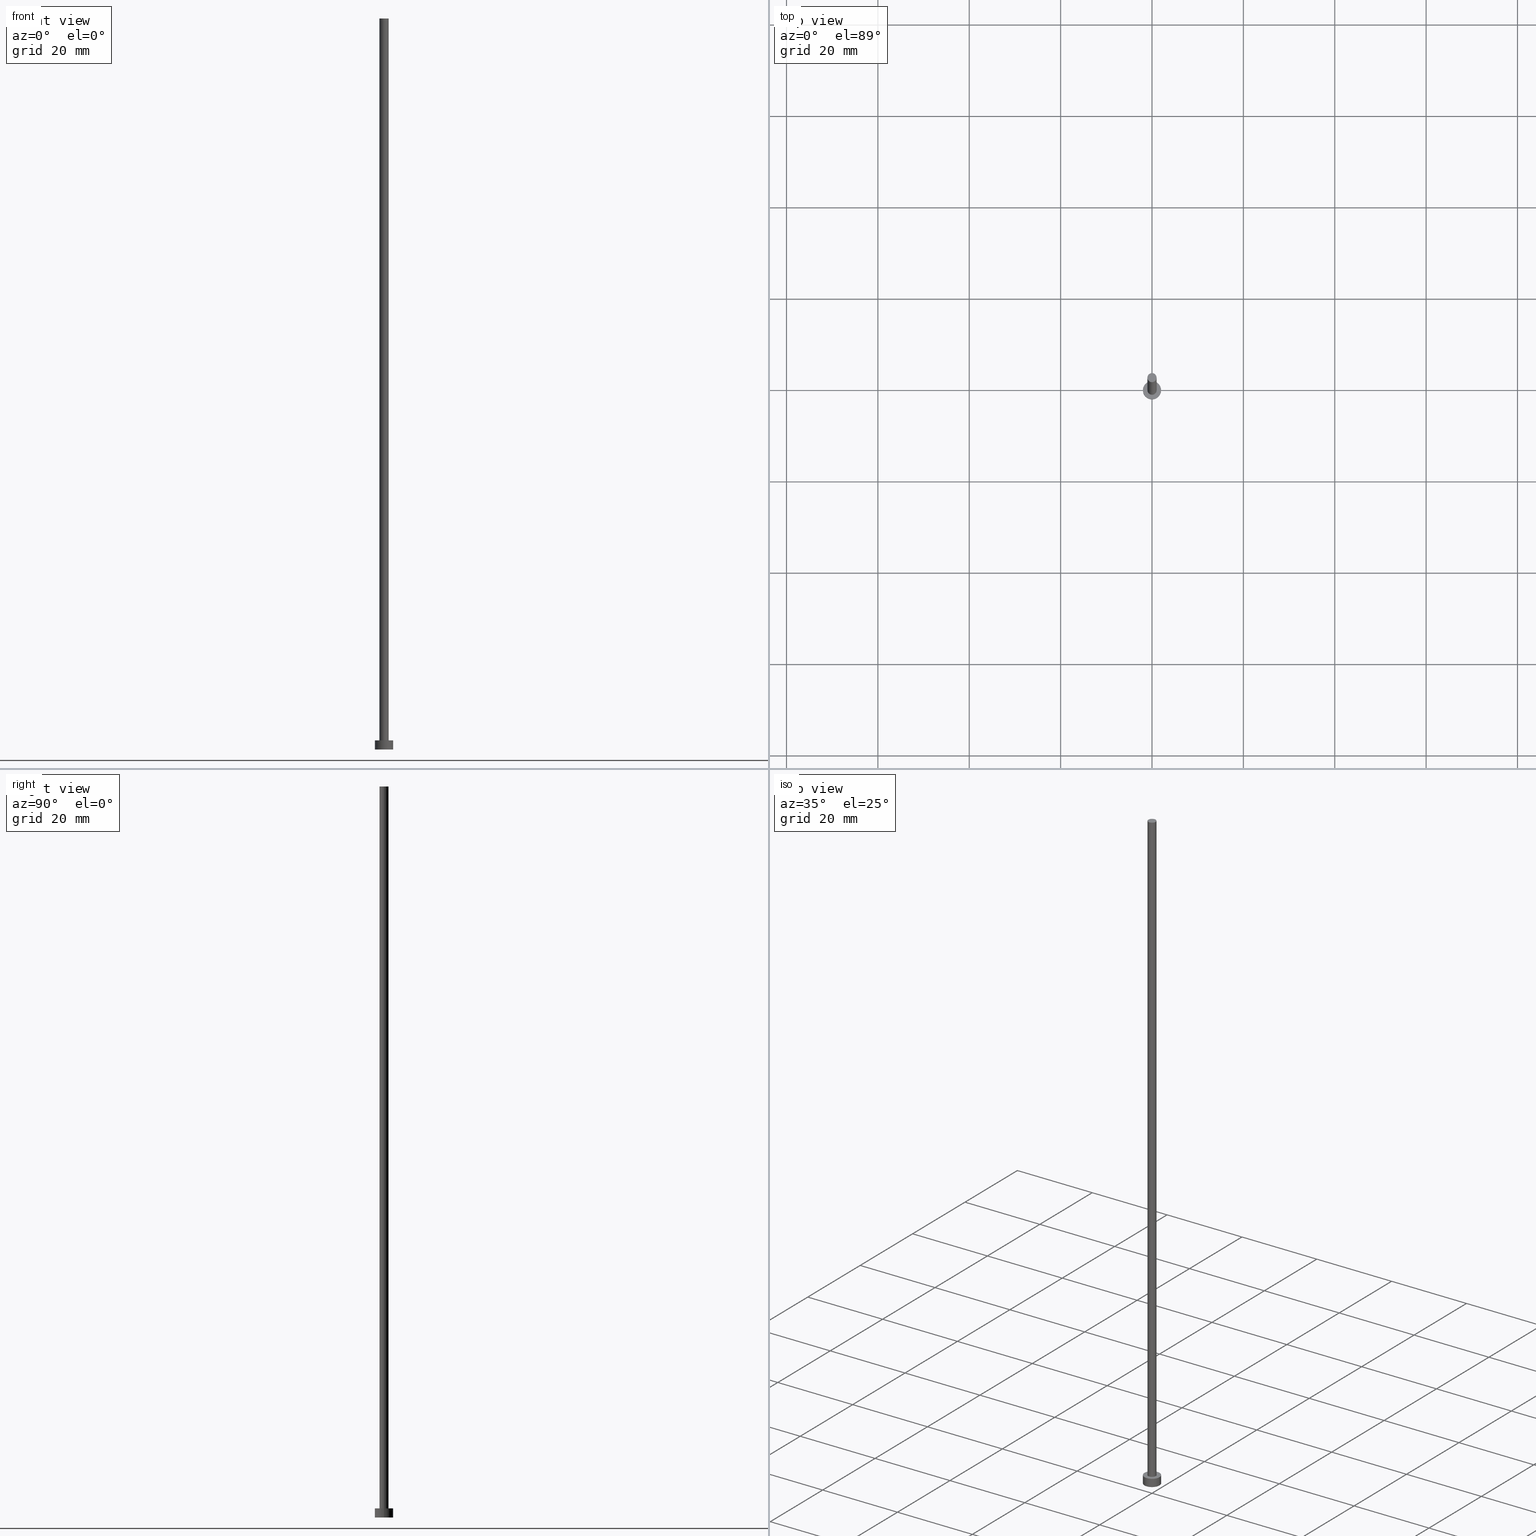
[diagram: canonical four-view strip — front | top / right | iso, engineering-drawing reading convention]
A machine part, canonical four-view strip (front | top / right | iso — engineering-drawing reading convention). The complete STEP part file that produces these views, byte-faithful:
ISO-10303-21;
HEADER;
FILE_DESCRIPTION (( 'STEP AP203' ),
    '1' );
FILE_NAME ('bf18.STEP',
    '2023-02-13T16:55:19',
    ( '' ),
    ( '' ),
    'SwSTEP 2.0',
    'SolidWorks 2019',
    '' );
FILE_SCHEMA (( 'CONFIG_CONTROL_DESIGN' ));
ENDSEC;

DATA;
#1 = CIRCLE ( 'NONE', #245, 1.000000000000000000 ) ;
#2 = DATE_AND_TIME ( #208, #3 ) ;
#3 = LOCAL_TIME ( 17, 55, 19.00000000000000000, #188 ) ;
#4 = CC_DESIGN_PERSON_AND_ORGANIZATION_ASSIGNMENT ( #29, #90, ( #133 ) ) ;
#5 = DATE_TIME_ROLE ( 'classification_date' ) ;
#6 = DATE_TIME_ROLE ( 'creation_date' ) ;
#7 = DATE_AND_TIME ( #189, #63 ) ;
#8 =( GEOMETRIC_REPRESENTATION_CONTEXT ( 3 ) GLOBAL_UNCERTAINTY_ASSIGNED_CONTEXT ( ( #97 ) ) GLOBAL_UNIT_ASSIGNED_CONTEXT ( ( #222, #145, #38 ) ) REPRESENTATION_CONTEXT ( 'NONE', 'WORKASPACE' ) );
#9 = CARTESIAN_POINT ( 'NONE',  ( -1.000000000000000000, 0.000000000000000000, 160.0000000000000000 ) ) ;
#10 = DIRECTION ( 'NONE',  ( 1.000000000000000000, 0.000000000000000000, 0.000000000000000000 ) ) ;
#11 = EDGE_LOOP ( 'NONE', ( #194, #174, #53, #210 ) ) ;
#12 = PRODUCT_DEFINITION_SHAPE ( 'NONE', 'NONE',  #149 ) ;
#13 = DESIGN_CONTEXT ( 'detailed design', #136, 'design' ) ;
#14 = EDGE_CURVE ( 'NONE', #156, #115, #84, .T. ) ;
#15 = DIRECTION ( 'NONE',  ( 0.000000000000000000, 0.000000000000000000, 1.000000000000000000 ) ) ;
#16 = FACE_OUTER_BOUND ( 'NONE', #134, .T. ) ;
#17 = CYLINDRICAL_SURFACE ( 'NONE', #201, 1.000000000000000000 ) ;
#18 = AXIS2_PLACEMENT_3D ( 'NONE', #130, #104, #142 ) ;
#19 = EDGE_CURVE ( 'NONE', #115, #156, #51, .T. ) ;
#20 = DIRECTION ( 'NONE',  ( 0.000000000000000000, 0.000000000000000000, 1.000000000000000000 ) ) ;
#21 = APPLICATION_PROTOCOL_DEFINITION ( 'international standard', 'config_control_design', 1994, #175 ) ;
#22 = DIRECTION ( 'NONE',  ( 0.000000000000000000, 0.000000000000000000, 1.000000000000000000 ) ) ;
#23 = APPROVAL_PERSON_ORGANIZATION ( #87, #177, #167 ) ;
#24 = EDGE_CURVE ( 'NONE', #115, #123, #196, .T. ) ;
#25 = DIRECTION ( 'NONE',  ( 1.000000000000000000, 0.000000000000000000, 0.000000000000000000 ) ) ;
#26 = PERSON_AND_ORGANIZATION ( #205, #78 ) ;
#27 = CIRCLE ( 'NONE', #60, 1.000000000000000000 ) ;
#28 = EDGE_LOOP ( 'NONE', ( #193, #198, #213, #76 ) ) ;
#29 = PERSON_AND_ORGANIZATION ( #205, #78 ) ;
#30 = ORIENTED_EDGE ( 'NONE', *, *, #19, .F. ) ;
#31 = CIRCLE ( 'NONE', #79, 1.000000000000000000 ) ;
#32 = DIRECTION ( 'NONE',  ( -0.000000000000000000, -0.000000000000000000, -1.000000000000000000 ) ) ;
#33 = EDGE_LOOP ( 'NONE', ( #71, #35 ) ) ;
#34 = EDGE_LOOP ( 'NONE', ( #92, #215 ) ) ;
#35 = ORIENTED_EDGE ( 'NONE', *, *, #251, .F. ) ;
#36 = CARTESIAN_POINT ( 'NONE',  ( 0.000000000000000000, 0.000000000000000000, 2.000000000000000000 ) ) ;
#37 = CARTESIAN_POINT ( 'NONE',  ( -2.000000000000000000, 0.000000000000000000, 2.000000000000000000 ) ) ;
#38 =( NAMED_UNIT ( * ) SI_UNIT ( $, .STERADIAN. ) SOLID_ANGLE_UNIT ( ) );
#39 = DIRECTION ( 'NONE',  ( 1.000000000000000000, 0.000000000000000000, 0.000000000000000000 ) ) ;
#40 = EDGE_CURVE ( 'NONE', #156, #158, #153, .T. ) ;
#41 = CARTESIAN_POINT ( 'NONE',  ( 0.000000000000000000, 0.000000000000000000, 2.000000000000000000 ) ) ;
#42 = AXIS2_PLACEMENT_3D ( 'NONE', #253, #111, #59 ) ;
#43 = COORDINATED_UNIVERSAL_TIME_OFFSET ( 1, 0, .AHEAD. ) ;
#44 = ADVANCED_BREP_SHAPE_REPRESENTATION ( 'bf18', ( #135, #197 ), #8 ) ;
#45 = PERSON_AND_ORGANIZATION ( #205, #78 ) ;
#46 = MECHANICAL_CONTEXT ( 'NONE', #175, 'mechanical' ) ;
#47 = CIRCLE ( 'NONE', #68, 2.000000000000000000 ) ;
#48 = APPROVAL_STATUS ( 'not_yet_approved' ) ;
#49 = CALENDAR_DATE ( 2023, 13, 2 ) ;
#50 = PRODUCT_RELATED_PRODUCT_CATEGORY ( 'detail', '', ( #133 ) ) ;
#51 = CIRCLE ( 'NONE', #191, 2.000000000000000000 ) ;
#52 = EDGE_LOOP ( 'NONE', ( #199, #227 ) ) ;
#53 = ORIENTED_EDGE ( 'NONE', *, *, #251, .T. ) ;
#54 = CC_DESIGN_PERSON_AND_ORGANIZATION_ASSIGNMENT ( #26, #242, ( #185 ) ) ;
#55 = CARTESIAN_POINT ( 'NONE',  ( 0.000000000000000000, 0.000000000000000000, 160.0000000000000000 ) ) ;
#56 = CARTESIAN_POINT ( 'NONE',  ( 0.000000000000000000, 0.000000000000000000, 160.0000000000000000 ) ) ;
#57 = CARTESIAN_POINT ( 'NONE',  ( 2.000000000000000000, 2.449293598294706414E-16, 2.000000000000000000 ) ) ;
#58 = CARTESIAN_POINT ( 'NONE',  ( -2.000000000000000000, 0.000000000000000000, 0.000000000000000000 ) ) ;
#59 = DIRECTION ( 'NONE',  ( 1.000000000000000000, 0.000000000000000000, 0.000000000000000000 ) ) ;
#60 = AXIS2_PLACEMENT_3D ( 'NONE', #181, #200, #39 ) ;
#61 = CARTESIAN_POINT ( 'NONE',  ( -1.000000000000000000, 0.000000000000000000, 2.000000000000000000 ) ) ;
#62 = COORDINATED_UNIVERSAL_TIME_OFFSET ( 1, 0, .AHEAD. ) ;
#63 = LOCAL_TIME ( 17, 55, 19.00000000000000000, #43 ) ;
#64 = ADVANCED_FACE ( 'NONE', ( #173 ), #179, .T. ) ;
#65 = APPROVAL_STATUS ( 'not_yet_approved' ) ;
#66 = DATE_AND_TIME ( #114, #140 ) ;
#67 = DIRECTION ( 'NONE',  ( 0.000000000000000000, 0.000000000000000000, 1.000000000000000000 ) ) ;
#68 = AXIS2_PLACEMENT_3D ( 'NONE', #203, #20, #108 ) ;
#69 = PERSON_AND_ORGANIZATION_ROLE ( 'classification_officer' ) ;
#70 = LOCAL_TIME ( 17, 55, 19.00000000000000000, #62 ) ;
#71 = ORIENTED_EDGE ( 'NONE', *, *, #91, .F. ) ;
#72 = ADVANCED_FACE ( 'NONE', ( #96 ), #138, .T. ) ;
#73 = ORIENTED_EDGE ( 'NONE', *, *, #24, .T. ) ;
#74 = EDGE_LOOP ( 'NONE', ( #30, #73, #137, #248 ) ) ;
#75 = ORIENTED_EDGE ( 'NONE', *, *, #14, .F. ) ;
#76 = ORIENTED_EDGE ( 'NONE', *, *, #91, .T. ) ;
#77 = DIRECTION ( 'NONE',  ( 1.000000000000000000, 0.000000000000000000, 0.000000000000000000 ) ) ;
#78 = ORGANIZATION ( 'NEUR�EN�', 'NEUR�EN�', '' ) ;
#79 = AXIS2_PLACEMENT_3D ( 'NONE', #36, #125, #77 ) ;
#80 = CARTESIAN_POINT ( 'NONE',  ( 0.000000000000000000, 0.000000000000000000, 0.000000000000000000 ) ) ;
#81 = PLANE ( 'NONE',  #144 ) ;
#82 = DIRECTION ( 'NONE',  ( -1.000000000000000000, 0.000000000000000000, 0.000000000000000000 ) ) ;
#83 = CC_DESIGN_PERSON_AND_ORGANIZATION_ASSIGNMENT ( #209, #69, ( #117 ) ) ;
#84 = CIRCLE ( 'NONE', #166, 2.000000000000000000 ) ;
#85 = CARTESIAN_POINT ( 'NONE',  ( 0.000000000000000000, 0.000000000000000000, 160.0000000000000000 ) ) ;
#86 = CARTESIAN_POINT ( 'NONE',  ( 1.000000000000000000, 1.224646799147353207E-16, 160.0000000000000000 ) ) ;
#87 = PERSON_AND_ORGANIZATION ( #205, #78 ) ;
#88 = VECTOR ( 'NONE', #236, 1000.000000000000000 ) ;
#89 = AXIS2_PLACEMENT_3D ( 'NONE', #80, #182, #161 ) ;
#90 = PERSON_AND_ORGANIZATION_ROLE ( 'design_owner' ) ;
#91 = EDGE_CURVE ( 'NONE', #243, #232, #31, .T. ) ;
#92 = ORIENTED_EDGE ( 'NONE', *, *, #152, .F. ) ;
#93 = CIRCLE ( 'NONE', #42, 1.000000000000000000 ) ;
#94 = VERTEX_POINT ( 'NONE', #9 ) ;
#95 = CC_DESIGN_PERSON_AND_ORGANIZATION_ASSIGNMENT ( #171, #239, ( #149 ) ) ;
#96 = FACE_OUTER_BOUND ( 'NONE', #119, .T. ) ;
#97 = UNCERTAINTY_MEASURE_WITH_UNIT (LENGTH_MEASURE( 1.000000000000000082E-05 ), #222, 'distance_accuracy_value', 'NONE');
#98 = AXIS2_PLACEMENT_3D ( 'NONE', #56, #216, #139 ) ;
#99 = CARTESIAN_POINT ( 'NONE',  ( -2.000000000000000000, 0.000000000000000000, 2.000000000000000000 ) ) ;
#100 = DIRECTION ( 'NONE',  ( 1.000000000000000000, 0.000000000000000000, 0.000000000000000000 ) ) ;
#101 = CYLINDRICAL_SURFACE ( 'NONE', #103, 2.000000000000000000 ) ;
#102 = CC_DESIGN_DATE_AND_TIME_ASSIGNMENT ( #226, #5, ( #117 ) ) ;
#103 = AXIS2_PLACEMENT_3D ( 'NONE', #211, #32, #252 ) ;
#104 = DIRECTION ( 'NONE',  ( 0.000000000000000000, 0.000000000000000000, 1.000000000000000000 ) ) ;
#105 = CC_DESIGN_SECURITY_CLASSIFICATION ( #117, ( #185 ) ) ;
#106 = FACE_OUTER_BOUND ( 'NONE', #34, .T. ) ;
#107 = CC_DESIGN_PERSON_AND_ORGANIZATION_ASSIGNMENT ( #45, #112, ( #185 ) ) ;
#108 = DIRECTION ( 'NONE',  ( 1.000000000000000000, 0.000000000000000000, 0.000000000000000000 ) ) ;
#109 = CARTESIAN_POINT ( 'NONE',  ( 2.000000000000000000, 2.449293598294706414E-16, 0.000000000000000000 ) ) ;
#110 = CC_DESIGN_APPROVAL ( #143, ( #149 ) ) ;
#111 = DIRECTION ( 'NONE',  ( 0.000000000000000000, 0.000000000000000000, 1.000000000000000000 ) ) ;
#112 = PERSON_AND_ORGANIZATION_ROLE ( 'creator' ) ;
#113 = CC_DESIGN_APPROVAL ( #146, ( #185 ) ) ;
#114 = CALENDAR_DATE ( 2023, 13, 2 ) ;
#115 = VERTEX_POINT ( 'NONE', #229 ) ;
#116 = APPROVAL_STATUS ( 'not_yet_approved' ) ;
#117 = SECURITY_CLASSIFICATION ( '', '', #186 ) ;
#118 = APPROVAL_PERSON_ORGANIZATION ( #240, #143, #187 ) ;
#119 = EDGE_LOOP ( 'NONE', ( #180, #244 ) ) ;
#120 = ADVANCED_FACE ( 'NONE', ( #16 ), #101, .T. ) ;
#121 = ORIENTED_EDGE ( 'NONE', *, *, #24, .F. ) ;
#122 = CARTESIAN_POINT ( 'NONE',  ( 0.000000000000000000, 0.000000000000000000, 2.000000000000000000 ) ) ;
#123 = VERTEX_POINT ( 'NONE', #109 ) ;
#124 = ADVANCED_FACE ( 'NONE', ( #234 ), #17, .T. ) ;
#125 = DIRECTION ( 'NONE',  ( 0.000000000000000000, 0.000000000000000000, 1.000000000000000000 ) ) ;
#126 = CARTESIAN_POINT ( 'NONE',  ( 0.000000000000000000, 0.000000000000000000, 160.0000000000000000 ) ) ;
#127 = DIRECTION ( 'NONE',  ( 1.000000000000000000, 0.000000000000000000, 0.000000000000000000 ) ) ;
#128 = FACE_BOUND ( 'NONE', #33, .T. ) ;
#129 = DIRECTION ( 'NONE',  ( -0.000000000000000000, -0.000000000000000000, -1.000000000000000000 ) ) ;
#130 = CARTESIAN_POINT ( 'NONE',  ( 0.000000000000000000, 0.000000000000000000, 0.000000000000000000 ) ) ;
#131 = APPROVAL_DATE_TIME ( #2, #143 ) ;
#132 = APPLICATION_PROTOCOL_DEFINITION ( 'international standard', 'config_control_design', 1994, #136 ) ;
#133 = PRODUCT ( 'bf18', 'bf18', '', ( #46 ) ) ;
#134 = EDGE_LOOP ( 'NONE', ( #121, #75, #246, #230 ) ) ;
#135 = MANIFOLD_SOLID_BREP ( 'P�idat vysunut�m3', #249 ) ;
#136 = APPLICATION_CONTEXT ( 'configuration controlled 3d designs of mechanical parts and assemblies' ) ;
#137 = ORIENTED_EDGE ( 'NONE', *, *, #218, .T. ) ;
#138 = PLANE ( 'NONE',  #98 ) ;
#139 = DIRECTION ( 'NONE',  ( 1.000000000000000000, 0.000000000000000000, -0.000000000000000000 ) ) ;
#140 = LOCAL_TIME ( 17, 55, 19.00000000000000000, #206 ) ;
#141 = CARTESIAN_POINT ( 'NONE',  ( 0.000000000000000000, 0.000000000000000000, 2.000000000000000000 ) ) ;
#142 = DIRECTION ( 'NONE',  ( 1.000000000000000000, 0.000000000000000000, 0.000000000000000000 ) ) ;
#143 = APPROVAL ( #116, 'NEUR�EN�' ) ;
#144 = AXIS2_PLACEMENT_3D ( 'NONE', #41, #184, #204 ) ;
#145 =( NAMED_UNIT ( * ) PLANE_ANGLE_UNIT ( ) SI_UNIT ( $, .RADIAN. ) );
#146 = APPROVAL ( #65, 'NEUR�EN�' ) ;
#147 = AXIS2_PLACEMENT_3D ( 'NONE', #55, #247, #233 ) ;
#148 = COORDINATED_UNIVERSAL_TIME_OFFSET ( 1, 0, .AHEAD. ) ;
#149 = PRODUCT_DEFINITION ( 'NEZN�M�', '', #185, #13 ) ;
#150 = APPROVAL_DATE_TIME ( #7, #177 ) ;
#151 = CALENDAR_DATE ( 2023, 13, 2 ) ;
#152 = EDGE_CURVE ( 'NONE', #158, #123, #170, .T. ) ;
#153 = LINE ( 'NONE', #99, #154 ) ;
#154 = VECTOR ( 'NONE', #231, 1000.000000000000000 ) ;
#155 = CARTESIAN_POINT ( 'NONE',  ( 0.000000000000000000, 0.000000000000000000, 2.000000000000000000 ) ) ;
#156 = VERTEX_POINT ( 'NONE', #37 ) ;
#157 = DIRECTION ( 'NONE',  ( 0.000000000000000000, 0.000000000000000000, 1.000000000000000000 ) ) ;
#158 = VERTEX_POINT ( 'NONE', #58 ) ;
#159 = EDGE_CURVE ( 'NONE', #178, #232, #162, .T. ) ;
#160 = DIRECTION ( 'NONE',  ( -0.000000000000000000, -0.000000000000000000, -1.000000000000000000 ) ) ;
#161 = DIRECTION ( 'NONE',  ( 1.000000000000000000, 0.000000000000000000, -0.000000000000000000 ) ) ;
#162 = LINE ( 'NONE', #219, #88 ) ;
#163 = FACE_OUTER_BOUND ( 'NONE', #52, .T. ) ;
#164 = LINE ( 'NONE', #235, #238 ) ;
#165 = CARTESIAN_POINT ( 'NONE',  ( 0.000000000000000000, 0.000000000000000000, 0.000000000000000000 ) ) ;
#166 = AXIS2_PLACEMENT_3D ( 'NONE', #155, #15, #10 ) ;
#167 = APPROVAL_ROLE ( '' ) ;
#168 = APPROVAL_DATE_TIME ( #241, #146 ) ;
#169 = PERSON_AND_ORGANIZATION ( #205, #78 ) ;
#170 = CIRCLE ( 'NONE', #18, 2.000000000000000000 ) ;
#171 = PERSON_AND_ORGANIZATION ( #205, #78 ) ;
#172 = EDGE_CURVE ( 'NONE', #178, #94, #1, .T. ) ;
#173 = FACE_OUTER_BOUND ( 'NONE', #11, .T. ) ;
#174 = ORIENTED_EDGE ( 'NONE', *, *, #159, .T. ) ;
#175 = APPLICATION_CONTEXT ( 'configuration controlled 3d designs of mechanical parts and assemblies' ) ;
#176 = VECTOR ( 'NONE', #217, 1000.000000000000000 ) ;
#177 = APPROVAL ( #48, 'NEUR�EN�' ) ;
#178 = VERTEX_POINT ( 'NONE', #86 ) ;
#179 = CYLINDRICAL_SURFACE ( 'NONE', #147, 1.000000000000000000 ) ;
#180 = ORIENTED_EDGE ( 'NONE', *, *, #195, .T. ) ;
#181 = CARTESIAN_POINT ( 'NONE',  ( 0.000000000000000000, 0.000000000000000000, 160.0000000000000000 ) ) ;
#182 = DIRECTION ( 'NONE',  ( 0.000000000000000000, 0.000000000000000000, 1.000000000000000000 ) ) ;
#183 = PLANE ( 'NONE',  #89 ) ;
#184 = DIRECTION ( 'NONE',  ( 0.000000000000000000, 0.000000000000000000, 1.000000000000000000 ) ) ;
#185 = PRODUCT_DEFINITION_FORMATION_WITH_SPECIFIED_SOURCE ( 'LIBOVOLN�', '', #133, .NOT_KNOWN. ) ;
#186 = SECURITY_CLASSIFICATION_LEVEL ( 'unclassified' ) ;
#187 = APPROVAL_ROLE ( '' ) ;
#188 = COORDINATED_UNIVERSAL_TIME_OFFSET ( 1, 0, .AHEAD. ) ;
#189 = CALENDAR_DATE ( 2023, 13, 2 ) ;
#190 = ADVANCED_FACE ( 'NONE', ( #128, #163 ), #81, .T. ) ;
#191 = AXIS2_PLACEMENT_3D ( 'NONE', #122, #157, #100 ) ;
#192 = AXIS2_PLACEMENT_3D ( 'NONE', #141, #160, #250 ) ;
#193 = ORIENTED_EDGE ( 'NONE', *, *, #159, .F. ) ;
#194 = ORIENTED_EDGE ( 'NONE', *, *, #172, .F. ) ;
#195 = EDGE_CURVE ( 'NONE', #94, #178, #27, .T. ) ;
#196 = LINE ( 'NONE', #57, #176 ) ;
#197 = AXIS2_PLACEMENT_3D ( 'NONE', #165, #67, #25 ) ;
#198 = ORIENTED_EDGE ( 'NONE', *, *, #195, .F. ) ;
#199 = ORIENTED_EDGE ( 'NONE', *, *, #14, .T. ) ;
#200 = DIRECTION ( 'NONE',  ( 0.000000000000000000, 0.000000000000000000, 1.000000000000000000 ) ) ;
#201 = AXIS2_PLACEMENT_3D ( 'NONE', #126, #221, #82 ) ;
#202 = APPROVAL_PERSON_ORGANIZATION ( #169, #146, #223 ) ;
#203 = CARTESIAN_POINT ( 'NONE',  ( 0.000000000000000000, 0.000000000000000000, 0.000000000000000000 ) ) ;
#204 = DIRECTION ( 'NONE',  ( 1.000000000000000000, 0.000000000000000000, -0.000000000000000000 ) ) ;
#205 = PERSON ( 'NEUR�EN�', 'NEUR�EN�', 'NEUR�EN�', ('NEUR�EN�'), ('NEUR�EN�'), ('NEUR�EN�') ) ;
#206 = COORDINATED_UNIVERSAL_TIME_OFFSET ( 1, 0, .AHEAD. ) ;
#207 = ADVANCED_FACE ( 'NONE', ( #237 ), #220, .T. ) ;
#208 = CALENDAR_DATE ( 2023, 13, 2 ) ;
#209 = PERSON_AND_ORGANIZATION ( #205, #78 ) ;
#210 = ORIENTED_EDGE ( 'NONE', *, *, #225, .F. ) ;
#211 = CARTESIAN_POINT ( 'NONE',  ( 0.000000000000000000, 0.000000000000000000, 2.000000000000000000 ) ) ;
#212 = CC_DESIGN_APPROVAL ( #177, ( #117 ) ) ;
#213 = ORIENTED_EDGE ( 'NONE', *, *, #225, .T. ) ;
#214 = CC_DESIGN_DATE_AND_TIME_ASSIGNMENT ( #66, #6, ( #149 ) ) ;
#215 = ORIENTED_EDGE ( 'NONE', *, *, #218, .F. ) ;
#216 = DIRECTION ( 'NONE',  ( 0.000000000000000000, 0.000000000000000000, 1.000000000000000000 ) ) ;
#217 = DIRECTION ( 'NONE',  ( -0.000000000000000000, -0.000000000000000000, -1.000000000000000000 ) ) ;
#218 = EDGE_CURVE ( 'NONE', #123, #158, #47, .T. ) ;
#219 = CARTESIAN_POINT ( 'NONE',  ( 1.000000000000000000, 1.224646799147353207E-16, 160.0000000000000000 ) ) ;
#220 = CYLINDRICAL_SURFACE ( 'NONE', #192, 2.000000000000000000 ) ;
#221 = DIRECTION ( 'NONE',  ( -0.000000000000000000, -0.000000000000000000, -1.000000000000000000 ) ) ;
#222 =( LENGTH_UNIT ( ) NAMED_UNIT ( * ) SI_UNIT ( .MILLI., .METRE. ) );
#223 = APPROVAL_ROLE ( '' ) ;
#224 = SHAPE_DEFINITION_REPRESENTATION ( #12, #44 ) ;
#225 = EDGE_CURVE ( 'NONE', #94, #243, #164, .T. ) ;
#226 = DATE_AND_TIME ( #151, #70 ) ;
#227 = ORIENTED_EDGE ( 'NONE', *, *, #19, .T. ) ;
#228 = ADVANCED_FACE ( 'NONE', ( #106 ), #183, .F. ) ;
#229 = CARTESIAN_POINT ( 'NONE',  ( 2.000000000000000000, 2.449293598294706414E-16, 2.000000000000000000 ) ) ;
#230 = ORIENTED_EDGE ( 'NONE', *, *, #152, .T. ) ;
#231 = DIRECTION ( 'NONE',  ( -0.000000000000000000, -0.000000000000000000, -1.000000000000000000 ) ) ;
#232 = VERTEX_POINT ( 'NONE', #255 ) ;
#233 = DIRECTION ( 'NONE',  ( -1.000000000000000000, 0.000000000000000000, 0.000000000000000000 ) ) ;
#234 = FACE_OUTER_BOUND ( 'NONE', #28, .T. ) ;
#235 = CARTESIAN_POINT ( 'NONE',  ( -1.000000000000000000, 0.000000000000000000, 160.0000000000000000 ) ) ;
#236 = DIRECTION ( 'NONE',  ( -0.000000000000000000, -0.000000000000000000, -1.000000000000000000 ) ) ;
#237 = FACE_OUTER_BOUND ( 'NONE', #74, .T. ) ;
#238 = VECTOR ( 'NONE', #129, 1000.000000000000000 ) ;
#239 = PERSON_AND_ORGANIZATION_ROLE ( 'creator' ) ;
#240 = PERSON_AND_ORGANIZATION ( #205, #78 ) ;
#241 = DATE_AND_TIME ( #49, #254 ) ;
#242 = PERSON_AND_ORGANIZATION_ROLE ( 'design_supplier' ) ;
#243 = VERTEX_POINT ( 'NONE', #61 ) ;
#244 = ORIENTED_EDGE ( 'NONE', *, *, #172, .T. ) ;
#245 = AXIS2_PLACEMENT_3D ( 'NONE', #85, #22, #127 ) ;
#246 = ORIENTED_EDGE ( 'NONE', *, *, #40, .T. ) ;
#247 = DIRECTION ( 'NONE',  ( -0.000000000000000000, -0.000000000000000000, -1.000000000000000000 ) ) ;
#248 = ORIENTED_EDGE ( 'NONE', *, *, #40, .F. ) ;
#249 = CLOSED_SHELL ( 'NONE', ( #64, #207, #120, #190, #228, #124, #72 ) ) ;
#250 = DIRECTION ( 'NONE',  ( -1.000000000000000000, 0.000000000000000000, 0.000000000000000000 ) ) ;
#251 = EDGE_CURVE ( 'NONE', #232, #243, #93, .T. ) ;
#252 = DIRECTION ( 'NONE',  ( -1.000000000000000000, 0.000000000000000000, 0.000000000000000000 ) ) ;
#253 = CARTESIAN_POINT ( 'NONE',  ( 0.000000000000000000, 0.000000000000000000, 2.000000000000000000 ) ) ;
#254 = LOCAL_TIME ( 17, 55, 19.00000000000000000, #148 ) ;
#255 = CARTESIAN_POINT ( 'NONE',  ( 1.000000000000000000, 1.224646799147353207E-16, 2.000000000000000000 ) ) ;
ENDSEC;
END-ISO-10303-21;
